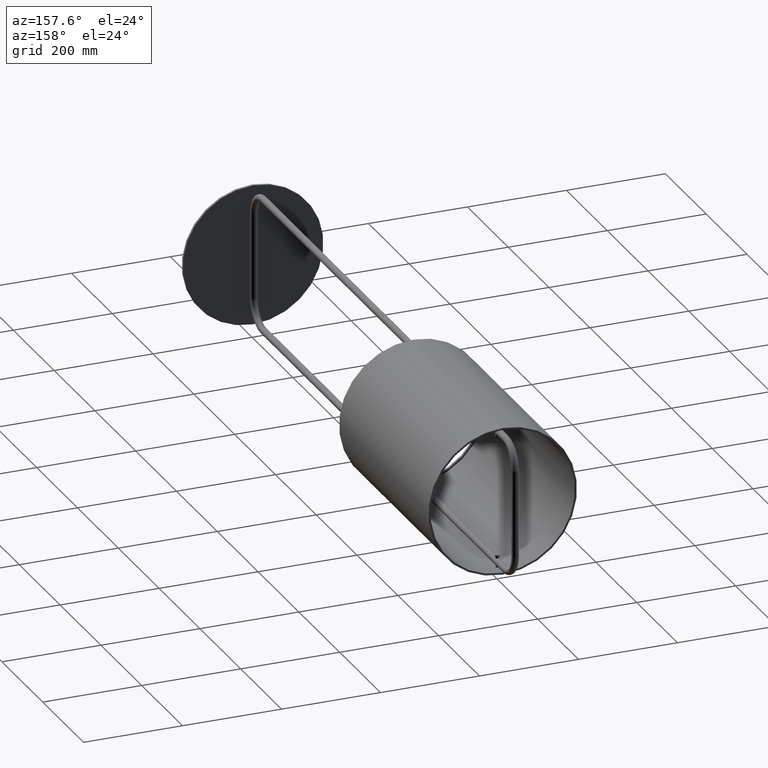
[diagram: clean part render]
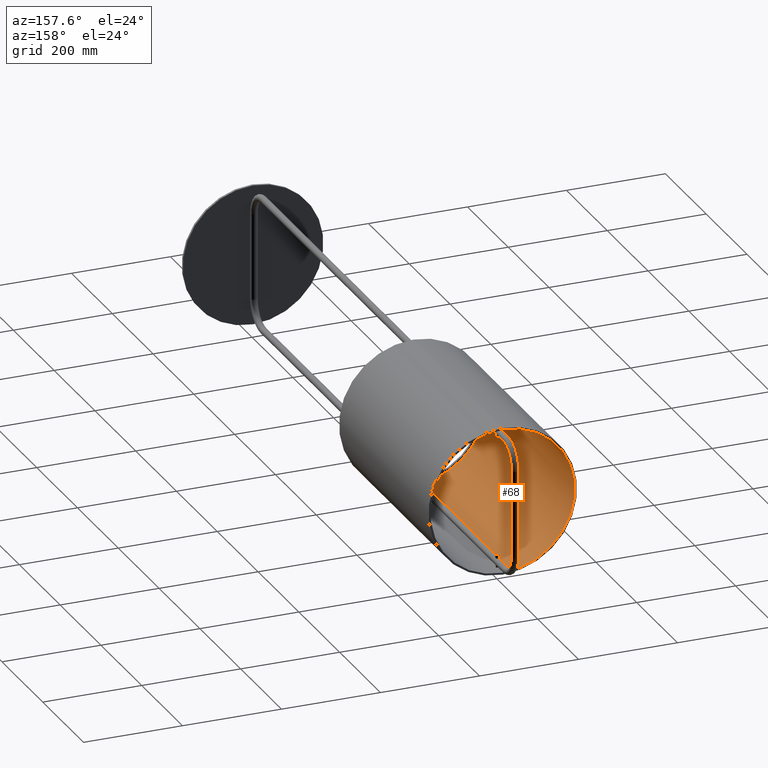
[diagram: same view with one face highlighted and labeled with its STEP entity id]
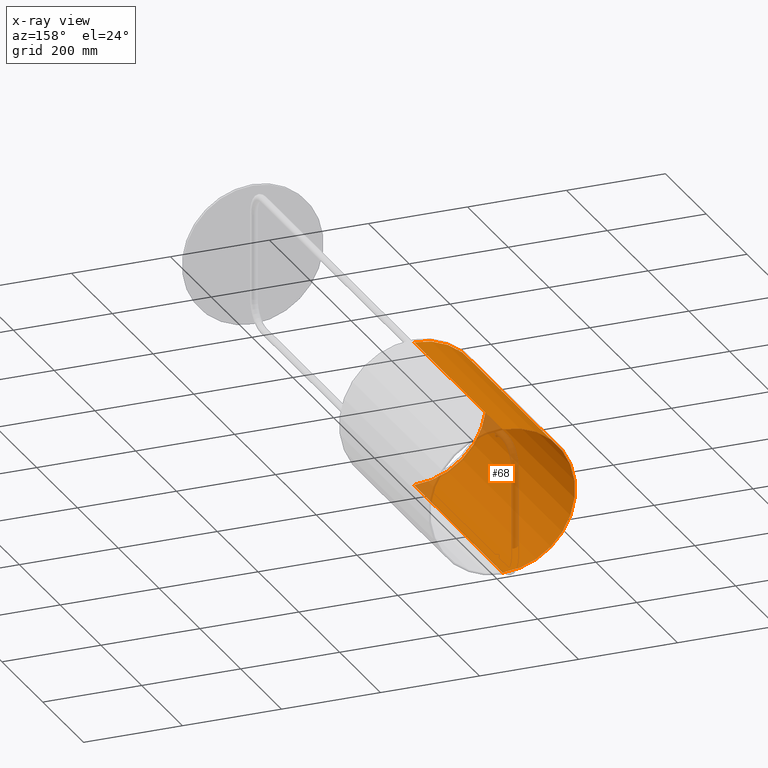
[diagram: x-ray of the same camera — body ghosted, the highlighted face saturated]
A machine part, auxiliary view. The second image highlights one B-rep face of the part: STEP entity #68.
The next image is the same camera in x-ray: the body ghosted, the highlighted face saturated — about 8% of this face is hidden behind the body in this view.
In plain terms, the highlighted cylindrical surface (partial cylindrical patch) has radius 146 mm, axis along (-0, -1, -0).
Its self-contained STEP definition (entity closure, byte-faithful):
#68 = ADVANCED_FACE ( 'NONE', ( #2643 ), #2637, .F. ) ;
#366 = CARTESIAN_POINT ( 'NONE',  ( 0.0000000000000000000, -217.2000000000000700, -146.0000000000000300 ) ) ;
#429 = DIRECTION ( 'NONE',  ( 0.0000000000000000000, 0.0000000000000000000, -1.000000000000000000 ) ) ;
#498 = VERTEX_POINT ( 'NONE', #1204 ) ;
#514 = CARTESIAN_POINT ( 'NONE',  ( 0.0000000000000000000, 217.5000000000000000, 0.0000000000000000000 ) ) ;
#519 = DIRECTION ( 'NONE',  ( -0.0000000000000000000, -1.000000000000000000, -0.0000000000000000000 ) ) ;
#1061 = VERTEX_POINT ( 'NONE', #1229 ) ;
#1128 = VERTEX_POINT ( 'NONE', #1184 ) ;
#1184 = CARTESIAN_POINT ( 'NONE',  ( 1.787984326755135400E-014, 217.1999999999996800, 146.0000000000000300 ) ) ;
#1204 = CARTESIAN_POINT ( 'NONE',  ( 1.787984326755135400E-014, -217.2000000000000700, 146.0000000000000300 ) ) ;
#1229 = CARTESIAN_POINT ( 'NONE',  ( 0.0000000000000000000, 217.1999999999996800, -146.0000000000000300 ) ) ;
#1429 = VERTEX_POINT ( 'NONE', #366 ) ;
#1597 = AXIS2_PLACEMENT_3D ( 'NONE', #3294, #4153, #3887 ) ;
#1668 = AXIS2_PLACEMENT_3D ( 'NONE', #7154, #7942, #7941 ) ;
#2032 = AXIS2_PLACEMENT_3D ( 'NONE', #514, #519, #429 ) ;
#2290 = CIRCLE ( 'NONE', #1668, 146.0000000000000300 ) ;
#2637 = CYLINDRICAL_SURFACE ( 'NONE', #2032, 146.0000000000000300 ) ;
#2643 = FACE_OUTER_BOUND ( 'NONE', #3164, .T. ) ;
#3164 = EDGE_LOOP ( 'NONE', ( #6717, #6697, #6677, #6676 ) ) ;
#3294 = CARTESIAN_POINT ( 'NONE',  ( 0.0000000000000000000, -217.2000000000000700, 0.0000000000000000000 ) ) ;
#3887 = DIRECTION ( 'NONE',  ( 0.0000000000000000000, 0.0000000000000000000, 1.000000000000000000 ) ) ;
#4153 = DIRECTION ( 'NONE',  ( -0.0000000000000000000, -1.000000000000000000, -0.0000000000000000000 ) ) ;
#4979 = EDGE_CURVE ( 'NONE', #498, #1429, #5424, .T. ) ;
#5083 = EDGE_CURVE ( 'NONE', #1128, #498, #5643, .T. ) ;
#5089 = EDGE_CURVE ( 'NONE', #1061, #1429, #5639, .T. ) ;
#5283 = EDGE_CURVE ( 'NONE', #1061, #1128, #2290, .T. ) ;
#5424 = CIRCLE ( 'NONE', #1597, 146.0000000000000300 ) ;
#5639 = LINE ( 'NONE', #7514, #5640 ) ;
#5640 = VECTOR ( 'NONE', #7519, 1000.000000000000000 ) ;
#5643 = LINE ( 'NONE', #7563, #5644 ) ;
#5644 = VECTOR ( 'NONE', #7568, 1000.000000000000000 ) ;
#6676 = ORIENTED_EDGE ( 'NONE', *, *, #5089, .F. ) ;
#6677 = ORIENTED_EDGE ( 'NONE', *, *, #4979, .T. ) ;
#6697 = ORIENTED_EDGE ( 'NONE', *, *, #5083, .T. ) ;
#6717 = ORIENTED_EDGE ( 'NONE', *, *, #5283, .T. ) ;
#7154 = CARTESIAN_POINT ( 'NONE',  ( 0.0000000000000000000, 217.1999999999996800, 0.0000000000000000000 ) ) ;
#7514 = CARTESIAN_POINT ( 'NONE',  ( 0.0000000000000000000, 217.5000000000000000, -146.0000000000000300 ) ) ;
#7519 = DIRECTION ( 'NONE',  ( -0.0000000000000000000, -1.000000000000000000, -0.0000000000000000000 ) ) ;
#7563 = CARTESIAN_POINT ( 'NONE',  ( 1.787984326755135400E-014, 217.5000000000000000, 146.0000000000000300 ) ) ;
#7568 = DIRECTION ( 'NONE',  ( -0.0000000000000000000, -1.000000000000000000, -0.0000000000000000000 ) ) ;
#7941 = DIRECTION ( 'NONE',  ( 0.0000000000000000000, 0.0000000000000000000, 1.000000000000000000 ) ) ;
#7942 = DIRECTION ( 'NONE',  ( 0.0000000000000000000, 1.000000000000000000, 0.0000000000000000000 ) ) ;